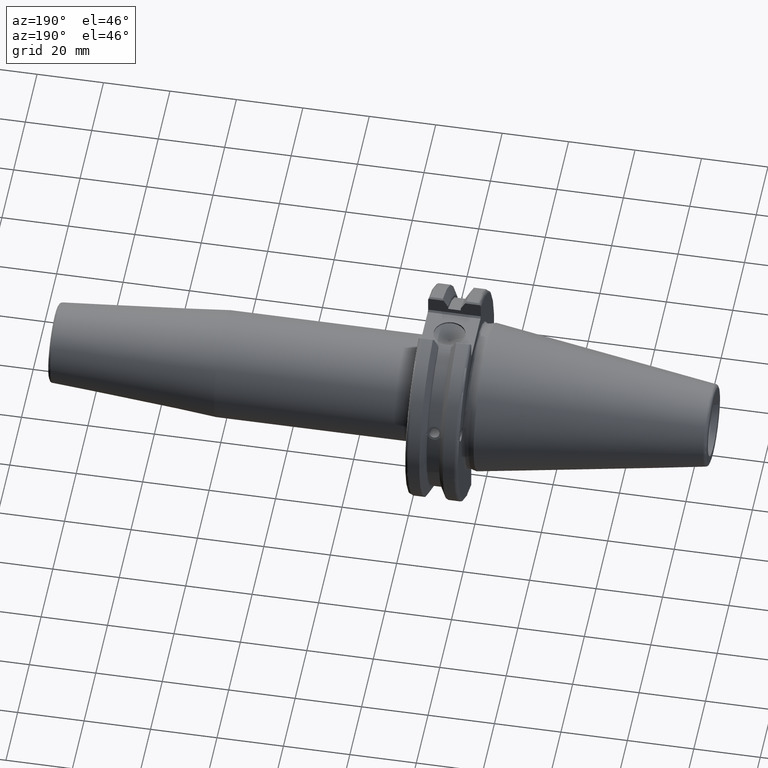
[diagram: clean part render]
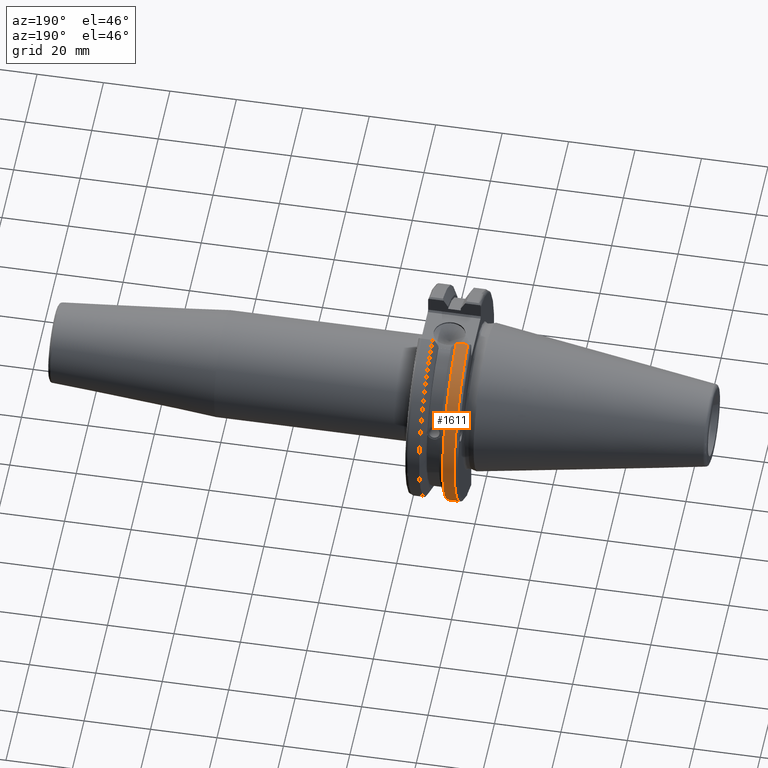
[diagram: same view with one face highlighted and labeled with its STEP entity id]
A machine part, auxiliary view. The second image highlights one B-rep face of the part: STEP entity #1611.
In plain terms, the highlighted cylindrical surface (partial cylindrical patch) has radius 31.75 mm, axis along (1, 0, 0).
Its self-contained STEP definition (entity closure, byte-faithful):
#170=CYLINDRICAL_SURFACE('',#1810,31.75);
#250=FACE_OUTER_BOUND('',#357,.T.);
#357=EDGE_LOOP('',(#1450,#1451,#1452,#1453));
#452=LINE('',#3011,#550);
#467=LINE('',#3064,#565);
#550=VECTOR('',#2191,10.);
#565=VECTOR('',#2250,10.);
#608=CIRCLE('',#1742,31.75);
#628=CIRCLE('',#1786,31.75);
#735=VERTEX_POINT('',#2738);
#736=VERTEX_POINT('',#2742);
#787=VERTEX_POINT('',#2985);
#788=VERTEX_POINT('',#2994);
#923=EDGE_CURVE('',#735,#736,#608,.T.);
#1000=EDGE_CURVE('',#787,#788,#628,.T.);
#1003=EDGE_CURVE('',#788,#735,#452,.T.);
#1027=EDGE_CURVE('',#736,#787,#467,.T.);
#1450=ORIENTED_EDGE('',*,*,#1000,.F.);
#1451=ORIENTED_EDGE('',*,*,#1027,.F.);
#1452=ORIENTED_EDGE('',*,*,#923,.F.);
#1453=ORIENTED_EDGE('',*,*,#1003,.F.);
#1611=ADVANCED_FACE('',(#250),#170,.T.);
#1742=AXIS2_PLACEMENT_3D('',#2743,#2065,#2066);
#1786=AXIS2_PLACEMENT_3D('',#2995,#2187,#2188);
#1810=AXIS2_PLACEMENT_3D('',#3065,#2251,#2252);
#2065=DIRECTION('center_axis',(1.,0.,0.));
#2066=DIRECTION('ref_axis',(0.,0.,-1.));
#2187=DIRECTION('center_axis',(-1.,0.,0.));
#2188=DIRECTION('ref_axis',(0.,1.,1.60812264967664E-16));
#2191=DIRECTION('',(1.,0.,0.));
#2250=DIRECTION('',(-1.,0.,0.));
#2251=DIRECTION('center_axis',(1.,0.,0.));
#2252=DIRECTION('ref_axis',(0.,1.,0.));
#2738=CARTESIAN_POINT('',(7.60793323092436,8.67204822802685,-30.5427254764662));
#2742=CARTESIAN_POINT('',(7.60793323092436,8.67204822802685,30.5427254764662));
#2743=CARTESIAN_POINT('Origin',(7.60793323092436,0.,0.));
#2985=CARTESIAN_POINT('',(4.175,8.67204822802685,30.5427254764662));
#2994=CARTESIAN_POINT('',(4.175,8.67204822802685,-30.5427254764662));
#2995=CARTESIAN_POINT('Origin',(4.175,0.,0.));
#3011=CARTESIAN_POINT('',(5.39146661546218,8.67204822802685,-30.5427254764662));
#3064=CARTESIAN_POINT('',(5.39146661546218,8.67204822802685,30.5427254764662));
#3065=CARTESIAN_POINT('Origin',(5.39146661546218,0.,0.));